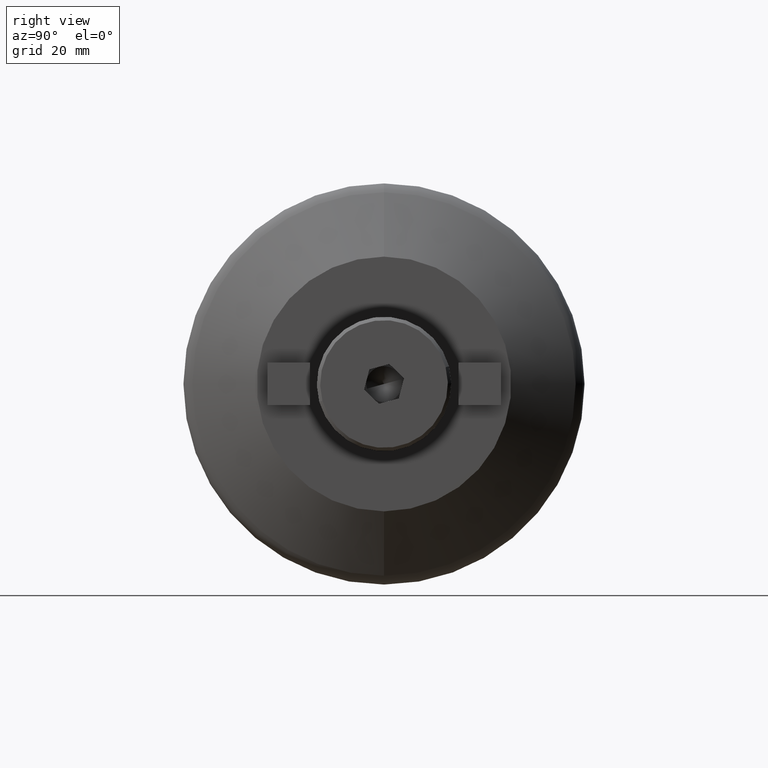
[diagram: clean part render]
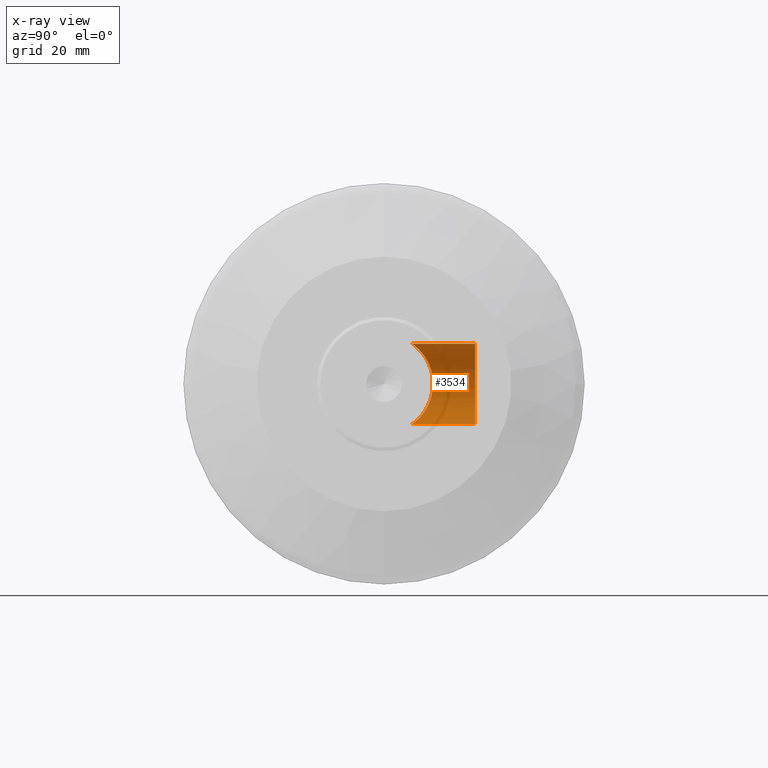
[diagram: x-ray — body ghosted, one internal face saturated and labeled with its STEP entity id]
A machine part, right view, then the same camera in x-ray: the body is ghosted and one INTERNAL B-rep face — a face not visible from any outside direction — is saturated and labeled: STEP entity #3534.
In plain terms, the highlighted cylindrical surface (partial cylindrical patch) has radius 9 mm, axis along (0, 1, 0).
Its self-contained STEP definition (entity closure, byte-faithful):
#443 = ORIENTED_EDGE ( 'NONE', *, *, #2498, .F. ) ;
#461 = ORIENTED_EDGE ( 'NONE', *, *, #2643, .T. ) ;
#1975 = B_SPLINE_CURVE_WITH_KNOTS ( 'NONE', 3,
 ( #4790, #4688, #4793, #4792, #4687, #4685, #4769, #4683, #4682, #4681, #4767, #4680, #4766, #4765, #4679, #4678, #4677, #4776, #4775, #4676, #4675, #4771, #4770, #4674, #4768, #4673, #4672, #4671, #4670, #4764, #4669, #4763, #4762, #4690, #4694, #4693, #4692, #4691, #4652, #4667, #4716, #4828, #4827, #4858, #4857, #4801, #4798, #4799, #4796, #4628, #4629, #4626, #4627, #4601 ),
 .UNSPECIFIED., .F., .F.,
 ( 4, 2, 2, 2, 2, 2, 2, 2, 2, 2, 2, 2, 2, 2, 2, 2, 2, 2, 2, 2, 2, 2, 2, 2, 2, 2, 4 ),
 ( 0.02997932417630955900, 0.03091598688851945500, 0.03185264960072935200, 0.03372597502514915900, 0.03559930044956896600, 0.03653596316177886600, 0.03747262587398877300, 0.03934595129840858000, 0.04028261401061848000, 0.04121927672282838700, 0.04309260214724819300, 0.04402926485945809300, 0.04496592757166800000, 0.04590259028387790000, 0.04683925299608780000, 0.04777591570829770000, 0.04871257842050760700, 0.05058590384492740700, 0.05152256655713731400, 0.05245922926934720700, 0.05339589198155710700, 0.05433255469376700700, 0.05620588011818678000, 0.05714254283039667300, 0.05807920554260655900, 0.05901586825481644500, 0.05995253096702633800 ),
 .UNSPECIFIED. ) ;
#2498 = EDGE_CURVE ( 'NONE', #7929, #7700, #2516, .T. ) ;
#2516 = LINE ( 'NONE', #6370, #2520 ) ;
#2520 = VECTOR ( 'NONE', #6364, 1000.000000000000000 ) ;
#2538 = EDGE_CURVE ( 'NONE', #7578, #7700, #2609, .T. ) ;
#2609 = CIRCLE ( 'NONE', #5782, 9.000000000000001800 ) ;
#2633 = EDGE_CURVE ( 'NONE', #7498, #7929, #1975, .T. ) ;
#2643 = EDGE_CURVE ( 'NONE', #7498, #7578, #2770, .T. ) ;
#2765 = VECTOR ( 'NONE', #4809, 1000.000000000000000 ) ;
#2770 = LINE ( 'NONE', #4651, #2765 ) ;
#3503 = CARTESIAN_POINT ( 'NONE',  ( 37.99999999999999300, 20.45299999999999900, 0.0000000000000000000 ) ) ;
#3534 = ADVANCED_FACE ( 'NONE', ( #8151 ), #8160, .F. ) ;
#4089 = CARTESIAN_POINT ( 'NONE',  ( 37.99999999999999300, 20.45299999999999900, 9.000000000000001800 ) ) ;
#4442 = CARTESIAN_POINT ( 'NONE',  ( 38.00000000000014900, 6.324555320337295500, 9.000000000000078200 ) ) ;
#4601 = CARTESIAN_POINT ( 'NONE',  ( 38.00000000000014900, 6.324555320337295500, 9.000000000000078200 ) ) ;
#4626 = CARTESIAN_POINT ( 'NONE',  ( 37.36758758028116000, 6.348810466722624400, 8.983078160859577100 ) ) ;
#4627 = CARTESIAN_POINT ( 'NONE',  ( 37.68253252754211500, 6.324555320336745700, 9.000000000000001800 ) ) ;
#4628 = CARTESIAN_POINT ( 'NONE',  ( 36.45039919126642000, 6.505369226234753600, 8.870794822159666600 ) ) ;
#4629 = CARTESIAN_POINT ( 'NONE',  ( 36.75246002574598900, 6.439239462942333100, 8.918479843861575800 ) ) ;
#4651 = CARTESIAN_POINT ( 'NONE',  ( 37.99999999999999300, -45.00000000000000000, -9.000000000000003600 ) ) ;
#4652 = CARTESIAN_POINT ( 'NONE',  ( 31.49700084325653600, 9.070227025113871000, 6.228095582515775800 ) ) ;
#4667 = CARTESIAN_POINT ( 'NONE',  ( 31.89613122761825900, 8.788471667187462100, 6.619740072472760400 ) ) ;
#4669 = CARTESIAN_POINT ( 'NONE',  ( 29.33239189154939600, 10.72960462351118800, 2.442414731716955300 ) ) ;
#4670 = CARTESIAN_POINT ( 'NONE',  ( 29.12746308204172900, 10.89589586246527200, 1.540691347388896300 ) ) ;
#4671 = CARTESIAN_POINT ( 'NONE',  ( 29.07882424051057400, 10.93558575195800000, 1.229394952563919800 ) ) ;
#4672 = CARTESIAN_POINT ( 'NONE',  ( 29.01479483002166400, 10.98788290588001700, 0.6040504403491909800 ) ) ;
#4673 = CARTESIAN_POINT ( 'NONE',  ( 28.99932927823758200, 11.00054877189566600, 0.2918124169082807500 ) ) ;
#4674 = CARTESIAN_POINT ( 'NONE',  ( 29.01756788672948100, 10.98561425411707200, -0.6432021774062947100 ) ) ;
#4675 = CARTESIAN_POINT ( 'NONE',  ( 29.32798476031976900, 10.73303995099937300, -2.485920569551087300 ) ) ;
#4676 = CARTESIAN_POINT ( 'NONE',  ( 29.51573923968090800, 10.58116722006072100, -3.062465036862888300 ) ) ;
#4677 = CARTESIAN_POINT ( 'NONE',  ( 30.29710993387517700, 9.966266519665991200, -4.663753832353021000 ) ) ;
#4678 = CARTESIAN_POINT ( 'NONE',  ( 30.45016142005552600, 9.848293230677802200, -4.907236627955186700 ) ) ;
#4679 = CARTESIAN_POINT ( 'NONE',  ( 30.93797117138967700, 9.477738077880657000, -5.608197967950849800 ) ) ;
#4680 = CARTESIAN_POINT ( 'NONE',  ( 32.11240224775287500, 8.639332235174991900, -6.812727360299551700 ) ) ;
#4681 = CARTESIAN_POINT ( 'NONE',  ( 32.76597117201573200, 8.207467075943778700, -7.326768196248640800 ) ) ;
#4682 = CARTESIAN_POINT ( 'NONE',  ( 33.45605761540714700, 7.779283033584968100, -7.788385423207042600 ) ) ;
#4683 = CARTESIAN_POINT ( 'NONE',  ( 33.94538452571077900, 7.498357647435792500, -8.055568128153829800 ) ) ;
#4685 = CARTESIAN_POINT ( 'NONE',  ( 35.56178348825185500, 6.754377607669281000, -8.684545351785475400 ) ) ;
#4687 = CARTESIAN_POINT ( 'NONE',  ( 36.45023659715001700, 6.505455086465425500, -8.870726595185534100 ) ) ;
#4688 = CARTESIAN_POINT ( 'NONE',  ( 37.68704853472900900, 6.324555320336751100, -9.000000000000003600 ) ) ;
#4690 = CARTESIAN_POINT ( 'NONE',  ( 29.98422543537167700, 10.20937874570882400, 4.136322440102851800 ) ) ;
#4691 = CARTESIAN_POINT ( 'NONE',  ( 31.30563826794933400, 9.208643388611749400, 6.022136398295429200 ) ) ;
#4692 = CARTESIAN_POINT ( 'NONE',  ( 30.93938088378460800, 9.478236986029868300, 5.588225433440653600 ) ) ;
#4693 = CARTESIAN_POINT ( 'NONE',  ( 30.76383285977956200, 9.609927495919171400, 5.359230109251172700 ) ) ;
#4694 = CARTESIAN_POINT ( 'NONE',  ( 30.27061858885436900, 9.984873728867761100, 4.646559155060567800 ) ) ;
#4716 = CARTESIAN_POINT ( 'NONE',  ( 32.10389577112384500, 8.645121770151424900, 6.805420925311391800 ) ) ;
#4762 = CARTESIAN_POINT ( 'NONE',  ( 29.62486903029116200, 10.49464205608619400, 3.308720680275725600 ) ) ;
#4763 = CARTESIAN_POINT ( 'NONE',  ( 29.51740374296811700, 10.58071000996649700, 3.022975485109899600 ) ) ;
#4764 = CARTESIAN_POINT ( 'NONE',  ( 29.25414893641670500, 10.79298596828218800, 2.146096540715388900 ) ) ;
#4765 = CARTESIAN_POINT ( 'NONE',  ( 31.30097602784038500, 9.208474581211641300, -6.036457715081470000 ) ) ;
#4766 = CARTESIAN_POINT ( 'NONE',  ( 31.90312402947130000, 8.783602170141929100, -6.626238705432832000 ) ) ;
#4767 = CARTESIAN_POINT ( 'NONE',  ( 32.54346331369473700, 8.351529607590661500, -7.162630017601379100 ) ) ;
#4768 = CARTESIAN_POINT ( 'NONE',  ( 29.00071516957387300, 10.99941486172795300, -0.3318139073565871100 ) ) ;
#4769 = CARTESIAN_POINT ( 'NONE',  ( 35.00587502797888100, 6.982137574739825300, -8.506897211298190000 ) ) ;
#4770 = CARTESIAN_POINT ( 'NONE',  ( 29.08387648782997600, 10.93146341324060000, -1.265123403570811000 ) ) ;
#4771 = CARTESIAN_POINT ( 'NONE',  ( 29.13388790492685100, 10.89066197485386500, -1.577329599810551200 ) ) ;
#4775 = CARTESIAN_POINT ( 'NONE',  ( 29.87773150708434100, 10.29397154860355800, -3.888328396208870600 ) ) ;
#4776 = CARTESIAN_POINT ( 'NONE',  ( 30.01123720998650400, 10.18883133069318200, -4.155091366563164400 ) ) ;
#4790 = CARTESIAN_POINT ( 'NONE',  ( 37.99999999999999300, 6.324555320336755500, -9.000000000000003600 ) ) ;
#4792 = CARTESIAN_POINT ( 'NONE',  ( 36.75856573218269600, 6.437997773600919500, -8.919374952405206600 ) ) ;
#4793 = CARTESIAN_POINT ( 'NONE',  ( 37.37621731899003000, 6.347894227592907300, -8.983724380777522000 ) ) ;
#4796 = CARTESIAN_POINT ( 'NONE',  ( 35.85582995770683100, 6.672033518611989700, 8.746130474273465800 ) ) ;
#4798 = CARTESIAN_POINT ( 'NONE',  ( 35.00207751755012700, 6.994374932525722100, 8.491102994853578800 ) ) ;
#4799 = CARTESIAN_POINT ( 'NONE',  ( 35.56241124897074000, 6.773151438223580500, 8.668594485892475300 ) ) ;
#4801 = CARTESIAN_POINT ( 'NONE',  ( 34.73243995391149500, 7.115117841734852200, 8.390691223271490500 ) ) ;
#4809 = DIRECTION ( 'NONE',  ( -0.0000000000000000000, 1.000000000000000000, -0.0000000000000000000 ) ) ;
#4827 = CARTESIAN_POINT ( 'NONE',  ( 32.76260568321723100, 8.209575931333880300, 7.324464543071717200 ) ) ;
#4828 = CARTESIAN_POINT ( 'NONE',  ( 32.53662872687994000, 8.355986537263467200, 7.157469761059691600 ) ) ;
#4857 = CARTESIAN_POINT ( 'NONE',  ( 33.94870166744494400, 7.496988139732031300, 8.056647767958626400 ) ) ;
#4858 = CARTESIAN_POINT ( 'NONE',  ( 33.45930032922785800, 7.777229871337426400, 7.790658944439932100 ) ) ;
#4969 = CARTESIAN_POINT ( 'NONE',  ( 37.99999999999999300, 6.324555320336755500, -9.000000000000003600 ) ) ;
#5071 = CARTESIAN_POINT ( 'NONE',  ( 37.99999999999999300, 20.45299999999999900, -9.000000000000001800 ) ) ;
#5632 = DIRECTION ( 'NONE',  ( -0.0000000000000000000, 1.000000000000000000, -0.0000000000000000000 ) ) ;
#5634 = DIRECTION ( 'NONE',  ( 0.0000000000000000000, 0.0000000000000000000, 1.000000000000000000 ) ) ;
#5782 = AXIS2_PLACEMENT_3D ( 'NONE', #3503, #5632, #5634 ) ;
#6092 = AXIS2_PLACEMENT_3D ( 'NONE', #7341, #7339, #7251 ) ;
#6212 = ORIENTED_EDGE ( 'NONE', *, *, #2633, .F. ) ;
#6251 = ORIENTED_EDGE ( 'NONE', *, *, #2538, .T. ) ;
#6364 = DIRECTION ( 'NONE',  ( -0.0000000000000000000, 1.000000000000000000, -0.0000000000000000000 ) ) ;
#6370 = CARTESIAN_POINT ( 'NONE',  ( 37.99999999999999300, -45.00000000000000000, 9.000000000000003600 ) ) ;
#7251 = DIRECTION ( 'NONE',  ( 0.0000000000000000000, 0.0000000000000000000, 1.000000000000000000 ) ) ;
#7339 = DIRECTION ( 'NONE',  ( -0.0000000000000000000, 1.000000000000000000, -0.0000000000000000000 ) ) ;
#7341 = CARTESIAN_POINT ( 'NONE',  ( 37.99999999999999300, -45.00000000000000000, 0.0000000000000000000 ) ) ;
#7498 = VERTEX_POINT ( 'NONE', #4969 ) ;
#7578 = VERTEX_POINT ( 'NONE', #5071 ) ;
#7700 = VERTEX_POINT ( 'NONE', #4089 ) ;
#7929 = VERTEX_POINT ( 'NONE', #4442 ) ;
#8151 = FACE_OUTER_BOUND ( 'NONE', #8430, .T. ) ;
#8160 = CYLINDRICAL_SURFACE ( 'NONE', #6092, 9.000000000000003600 ) ;
#8430 = EDGE_LOOP ( 'NONE', ( #6212, #461, #6251, #443 ) ) ;